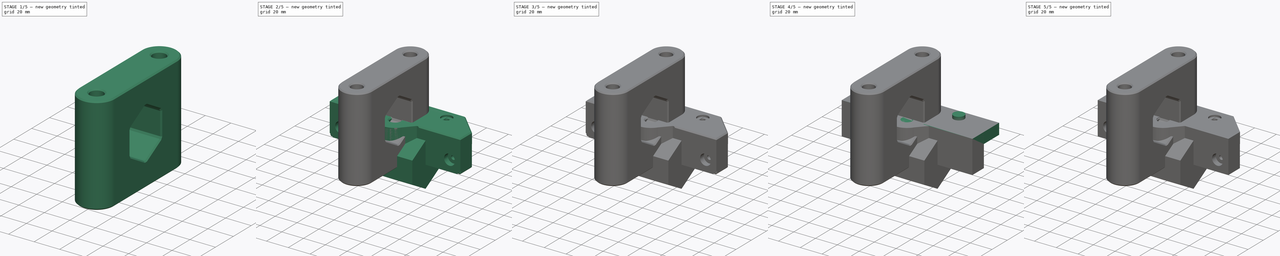
[diagram: build sequence overview — one tinted view per stage of 5, left to right]
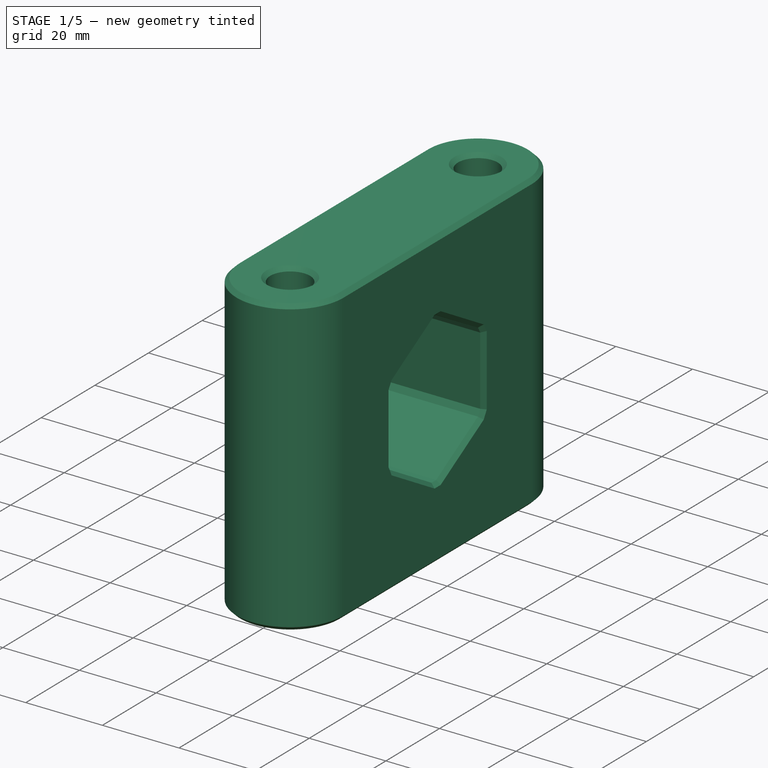
[diagram: stage 1 of 5 — iso view after this stage's code; geometry added in this stage tinted green]
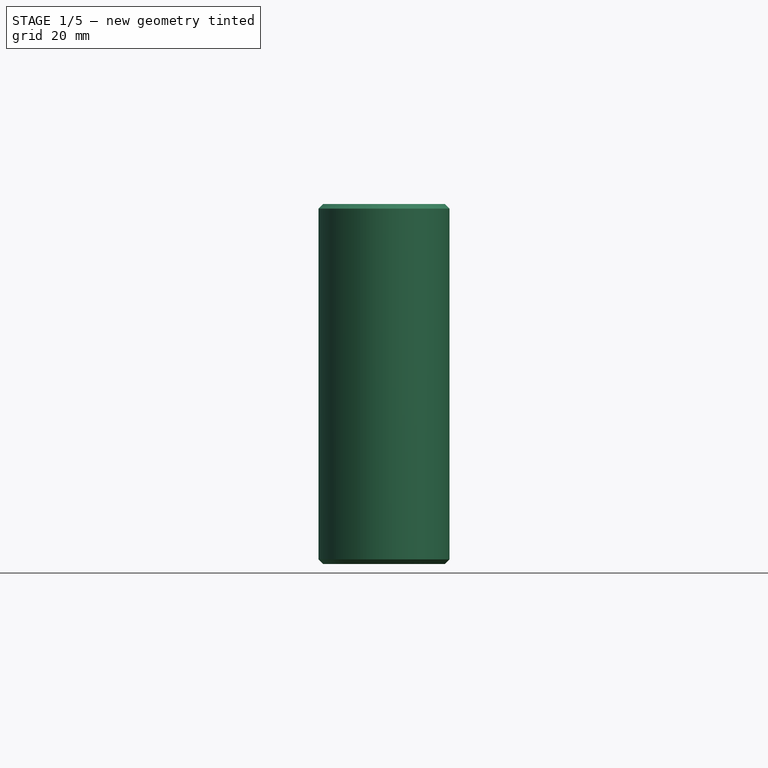
[diagram: stage 1 of 5 — front view after this stage's code; geometry added in this stage tinted green]
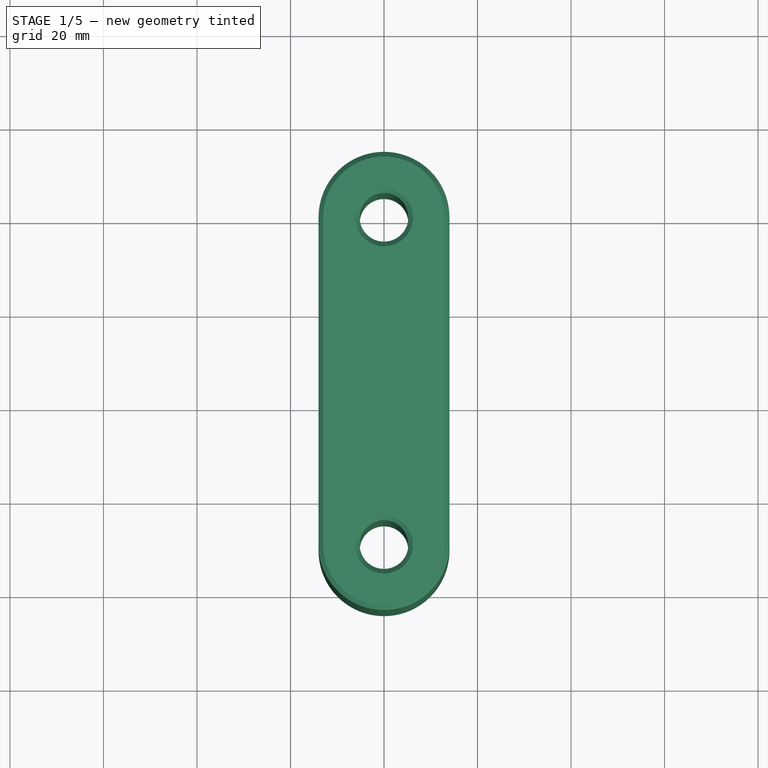
[diagram: stage 1 of 5 — top view after this stage's code; geometry added in this stage tinted green]
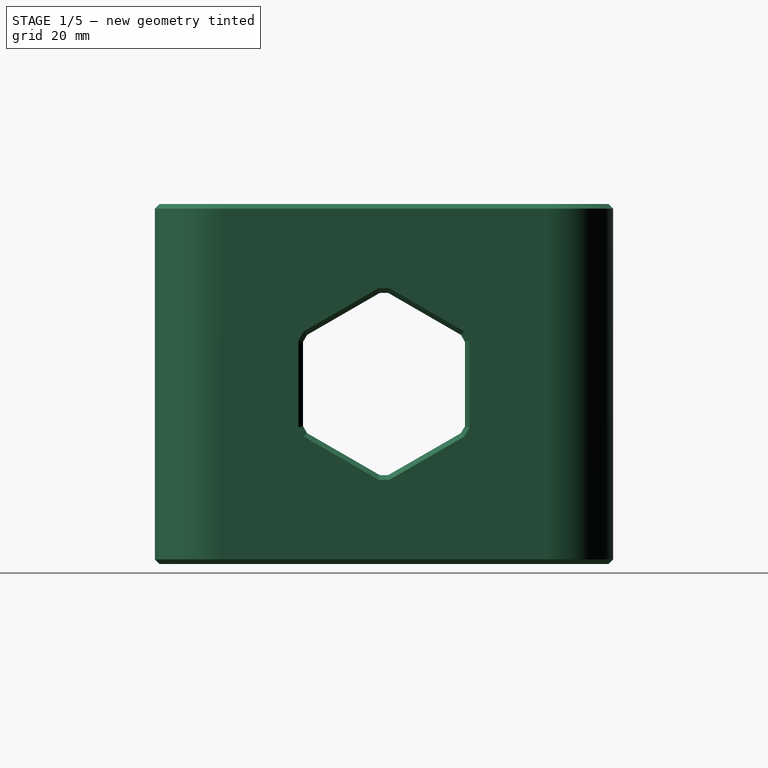
[diagram: stage 1 of 5 — right view after this stage's code; geometry added in this stage tinted green]
FCSTD DOCUMENT  (FreeCAD 0.18R16146 (Git))
Label: vesa-mounter
License: All rights reserved
LicenseURL: http://en.wikipedia.org/wiki/All_rights_reserved
objects: Part::Box×27, Part::Cylinder×18, Part::Cut×18, Part::MultiFuse×17, Part::Feature×16, Part::Chamfer×15, Sketcher::SketchObject×1, PartDesign::Pad×1, PartDesign::Body×1
note: 115 computed .brp shape members not serialized (recipe doc carries the construction recipe); baked Part::Feature solids carry a one-line shape summary decoded from their .brp

FEATURE [Part::Cylinder] Cylinder012
  Angle = 360
  AttacherType = Attacher::AttachEngine3D
  Height = 78
  Placement = pos=(0,20,0) rot=(0,0,1;0rad)
  Radius = 5.2
FEATURE [Part::Cylinder] Cylinder013
  Angle = 360
  AttacherType = Attacher::AttachEngine3D
  Height = 77
  Placement = pos=(0,20,0) rot=(0,0,1;0rad)
  Radius = 14
FEATURE [Part::Cylinder] Cylinder014
  Angle = 360
  AttacherType = Attacher::AttachEngine3D
  Height = 77
  Placement = pos=(0,-50,0) rot=(0,0,1;0rad)
  Radius = 14
FEATURE [Part::Cylinder] Cylinder015
  Angle = 360
  AttacherType = Attacher::AttachEngine3D
  Height = 78
  Placement = pos=(0,-50,0) rot=(0,0,1;0rad)
  Radius = 5.2
FEATURE [Part::Box] Box022  label="Cube022"
  AttacherType = Attacher::AttachEngine3D
  Height = 77
  Length = 28
  Placement = pos=(-14,-50,0) rot=(0,0,1;0rad)
  Width = 70
FEATURE [Part::Box] Box023  label="Cube023"
  AttacherType = Attacher::AttachEngine3D
  Height = 10
  Length = 0.5
  Placement = pos=(10,-50,5) rot=(0,0,1;0rad)
  Width = 70
FEATURE [Part::Box] Box024  label="Cube024"
  AttacherType = Attacher::AttachEngine3D
  Height = 10
  Length = 0.5
  Placement = pos=(-10.5,-50,5) rot=(0,0,1;0rad)
  Width = 70
FEATURE [Part::Box] Box025  label="Cube025"
  AttacherType = Attacher::AttachEngine3D
  Height = 10
  Length = 0.5
  Placement = pos=(-0.5,-40,5) rot=(0,0,1;0rad)
  Width = 50
FEATURE [Part::Box] Box026  label="Cube026"
  AttacherType = Attacher::AttachEngine3D
  Height = 10
  Length = 0.5
  Placement = pos=(-0.5,-40,61) rot=(0,0,1;0rad)
  Width = 50
FEATURE [Part::MultiFuse] Fusion002006007004002005003
  Shapes = -> [Cylinder014,Box022,Cylinder013]
FEATURE [Part::MultiFuse] Fusion002006007004002005004
  Shapes = -> [Cylinder012,Cylinder015]
FEATURE [Part::Cut] Cut004007005007
  Base = -> Fusion002006007004002005003
  Tool = -> Fusion002006007004002005004
FEATURE [Part::Chamfer] Chamfer004009
  Base = -> Cut004007005007
  Edges = 15 edges r=1: [Edge2,Edge4,Edge5,Edge7,Edge9,Edge11,Edge13,Edge15,Edge19,Edge20,Edge24,Edge28,Edge29,Edge30,Edge33]
FEATURE [Part::MultiFuse] Fusion002006007004002005005
  Shapes = -> [Box024,Box023]
FEATURE [Part::Feature] Fusion002006007004002005005001  label="Fusion002006007004002005006"
  Placement = pos=(0,0,57) rot=(0,0,1;0rad)
  shape: bbox 21 x 70 x 10 mm, 12 faces, 2 solids (baked)
FEATURE [Part::MultiFuse] Fusion002006007004002005005002
  Shapes = -> [Box026,Box025,Fusion002006007004002005005,Fusion002006007004002005005001]
FEATURE [Part::Cut] Cut004007005008
  Base = -> Chamfer004009
  Tool = -> Fusion002006007004002005005002
FEATURE [PartDesign::Body] Body
  Group = -> [Sketch,Pad]
  Origin = -> Origin
  Tip = -> Pad
FEATURE [Part::Feature] Body001
  Placement = pos=(-14,-15,38.5) rot=(0,0,1;0rad)
  shape: bbox 28 x 34.64 x 40 mm, 8 faces (baked)
FEATURE [Part::Cut] Cut004007005009
  Base = -> Cut004007005008
  Tool = -> Body001
FEATURE [Part::Chamfer] Chamfer004010
  Base = -> Cut004007005009
  Edges = 6 edges r=1: [Edge51,Edge52,Edge53,Edge54,Edge55,Edge56]
FEATURE [Part::Chamfer] Chamfer004011
  Base = -> Chamfer004010
  Edges = 24 edges r=1: [Edge1,Edge2,Edge3,Edge4,Edge5,Edge6,Edge7,Edge8,Edge9,Edge10,Edge11,Edge12,Edge21,Edge24,Edge26,Edge28,Edge30,Edge32,Edge34,Edge36,Edge38,Edge40,Edge42,Edge44]
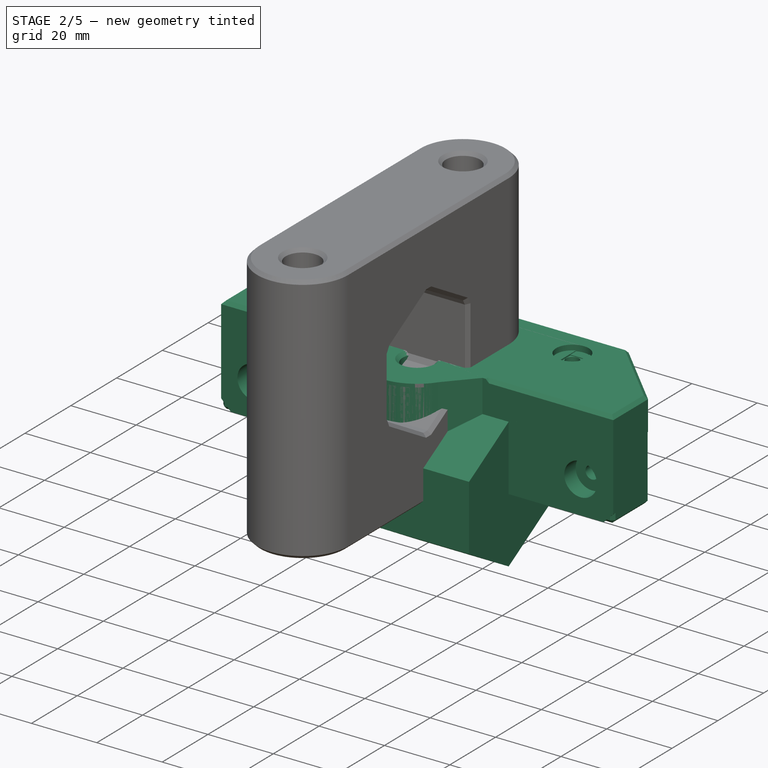
[diagram: stage 2 of 5 — iso view after this stage's code; geometry added in this stage tinted green]
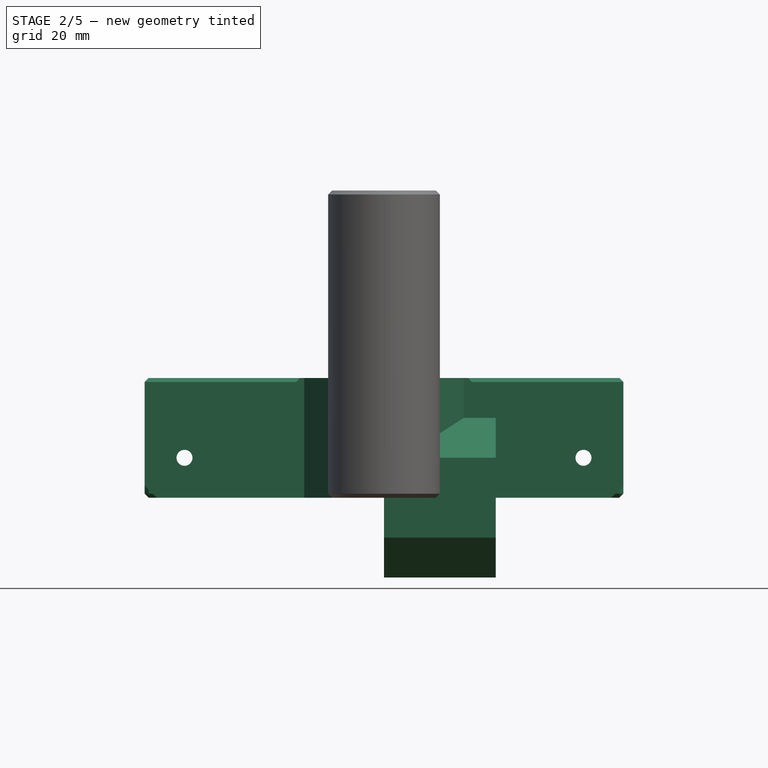
[diagram: stage 2 of 5 — front view after this stage's code; geometry added in this stage tinted green]
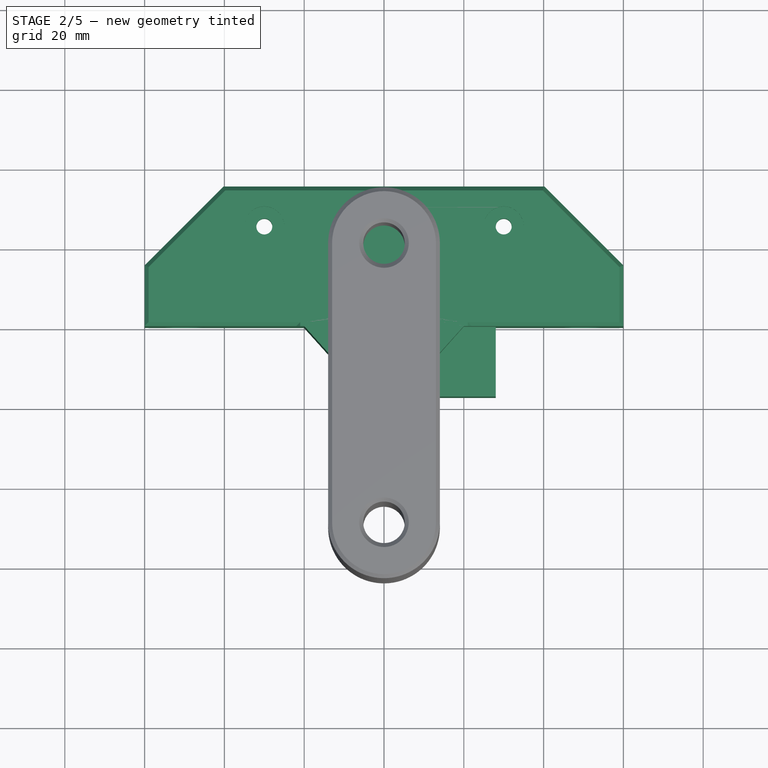
[diagram: stage 2 of 5 — top view after this stage's code; geometry added in this stage tinted green]
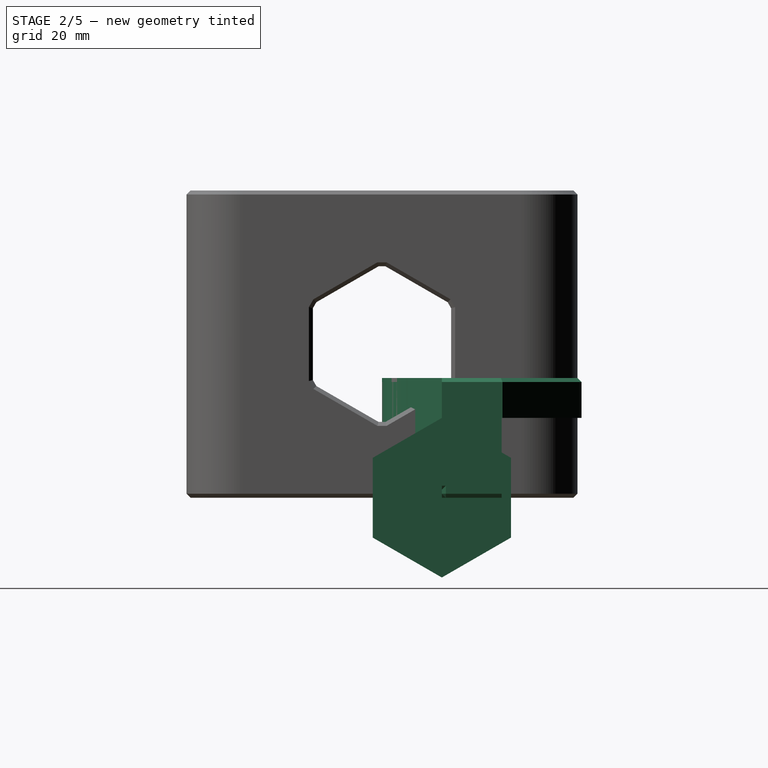
[diagram: stage 2 of 5 — right view after this stage's code; geometry added in this stage tinted green]
FEATURE [Part::Feature] Fusion002006001  label="top-bottom001"
  shape: bbox 120 x 50 x 30 mm, 49 faces (baked)
FEATURE [Part::Chamfer] Chamfer004  label="top"
  Base = -> Fusion002006001
  Edges = 14 edges r=1: [Edge59,Edge66,Edge72,Edge78,Edge87,Edge95,Edge101,Edge103,Edge108,Edge117,Edge132,Edge133,Edge135,Edge136]
FEATURE [Part::Feature] Fusion002006007001  label="monitor-mount001"
  shape: bbox 120 x 30 x 30 mm, 25 faces (baked)
FEATURE [Part::Chamfer] Chamfer004007  label="monitor-top-bottom"
  Base = -> Fusion002006007001
  Edges = 16 edges r=1: [Edge2,Edge5,Edge8,Edge16,Edge17,Edge22,Edge24,Edge26,Edge32,Edge33,Edge35,Edge67,Edge68,Edge69,Edge70,Edge71]
FEATURE [Part::Box] Box018  label="Cube018"
  AttacherType = Attacher::AttachEngine3D
  Height = 10
  Length = 30
  Placement = pos=(10,4,5) rot=(0,0,1;0rad)
  Width = 0.5
FEATURE [Part::Cylinder] Cylinder010
  Angle = 360
  AttacherType = Attacher::AttachEngine3D
  Height = 30
  Radius = 4.5
FEATURE [Part::Cylinder] Cylinder011
  Angle = 360
  AttacherType = Attacher::AttachEngine3D
  Height = 30
  Radius = 6
FEATURE [Part::Cut] Cut004007002
  Base = -> Cylinder011
  Tool = -> Cylinder010
FEATURE [Part::Chamfer] Chamfer004008
  Base = -> Cut004007002
  Edges = 2 edges r=1: [Edge4,Edge5]
FEATURE [Part::Box] Box019  label="Cube019"
  AttacherType = Attacher::AttachEngine3D
  Height = 20
  Length = 90
  Placement = pos=(-45,10,5) rot=(0,0,1;0rad)
  Width = 0.5
FEATURE [Part::Box] Box020  label="Cube020"
  AttacherType = Attacher::AttachEngine3D
  Height = 20
  Length = 30
  Placement = pos=(-40,6,5) rot=(0,0,1;0rad)
  Width = 0.5
FEATURE [Part::Box] Box021  label="Cube021"
  AttacherType = Attacher::AttachEngine3D
  Height = 20
  Length = 30
  Placement = pos=(10,6,5) rot=(0,0,1;0rad)
  Width = 0.5
FEATURE [Part::MultiFuse] Fusion002006007004
  Shapes = -> [Box019,Box021,Box020]
FEATURE [Part::Cut] Cut004007004  label="frame-top-rf"
  Base = -> Chamfer004
  Tool = -> Fusion002006007004
FEATURE [Part::Feature] Fusion002006007004002001  label="Fusion002006007004003"
  shape: bbox 90 x 6.5 x 10 mm, 18 faces, 3 solids (baked)
FEATURE [Part::Cut] Cut004007005  label="monitor-top-rf"
  Base = -> Chamfer004007
  Tool = -> Fusion002006007004002001
FEATURE [Part::Feature] Cut004007005001  label="monitor-top-rf001"
  shape: bbox 120 x 30 x 30 mm, 61 faces (baked)
FEATURE [Part::MultiFuse] Fusion002006007004002002  label="monitor-bottom-rf"
  Shapes = -> [Chamfer004008,Cut004007005001]
FEATURE [Part::Cylinder] Cylinder016
  Angle = 360
  AttacherType = Attacher::AttachEngine3D
  Height = 30
  Radius = 5.2
FEATURE [Part::Cut] Cut004007005005  label="monitor-top-rf-lg"
  Base = -> Cut004007005
  Tool = -> Cylinder016
FEATURE [Part::Cylinder] Cylinder018
  Angle = 360
  AttacherType = Attacher::AttachEngine3D
  Height = 30
  Radius = 5.2
FEATURE [Part::Cut] Cut004007005006  label="frame-top-rf-lg"
  Base = -> Cut004007004
  Tool = -> Cylinder018
FEATURE [Sketcher::SketchObject] Sketch
  MapMode = 5
  Placement = pos=(0,0,0) rot=(0.57735,0.57735,0.57735;2.0944rad)
  Support = -> [YZ_Plane]
  sketch-geometry (7):
    g0: LineSegment StartX=0 StartY=20 StartZ=0 EndX=-17.3205 EndY=10 EndZ=0
    g1: LineSegment StartX=-17.3205 StartY=10 StartZ=0 EndX=-17.3205 EndY=-10 EndZ=0
    g2: LineSegment StartX=-17.3205 StartY=-10 StartZ=0 EndX=-3.6e-15 EndY=-20 EndZ=0
    g3: LineSegment StartX=-3.6e-15 StartY=-20 StartZ=0 EndX=17.3205 EndY=-10 EndZ=0
    g4: LineSegment StartX=17.3205 StartY=-10 StartZ=0 EndX=17.3205 EndY=10 EndZ=0
    g5: LineSegment StartX=17.3205 StartY=10 StartZ=0 EndX=0 EndY=20 EndZ=0
    g6: Circle [constr] CenterX=0 CenterY=0 CenterZ=0 NormalX=0 NormalY=0 NormalZ=1 AngleXU=0 Radius=20
  constraints (13):
    c: Coincident(g0,g1)
    c: Coincident(g1,g2)
    c: Coincident(g2,g3)
    c: Coincident(g3,g4)
    c: Coincident(g4,g5)
    c: Coincident(g5,g0)
    c: Equal(g0, g1-g5) x5
    c: PointOnObject(g0,g6)
    c: PointOnObject(g1,g6)
    c: PointOnObject(g2,g6)
    c: PointOnObject(g3,g6)
    c: PointOnObject(g4,g6)
    c: PointOnObject(g5,g6)
FEATURE [PartDesign::Pad] Pad
  Length = 28
  Length2 = 100
  Placement = pos=(0,0,0) rot=(0.57735,0.57735,0.57735;2.0944rad)
  Profile = -> Sketch
  Type = 0
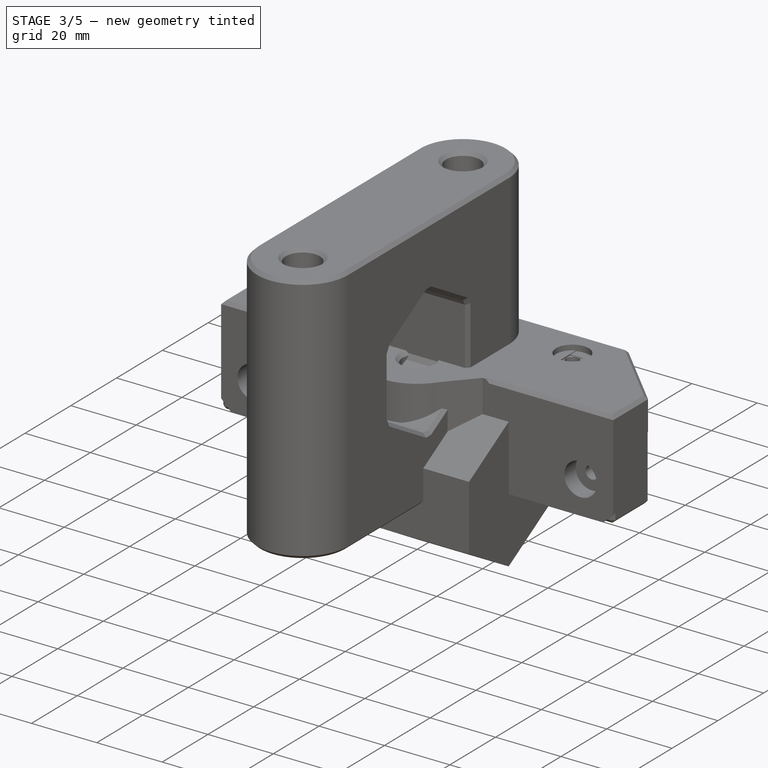
[diagram: stage 3 of 5 — iso view after this stage's code; geometry added in this stage tinted green]
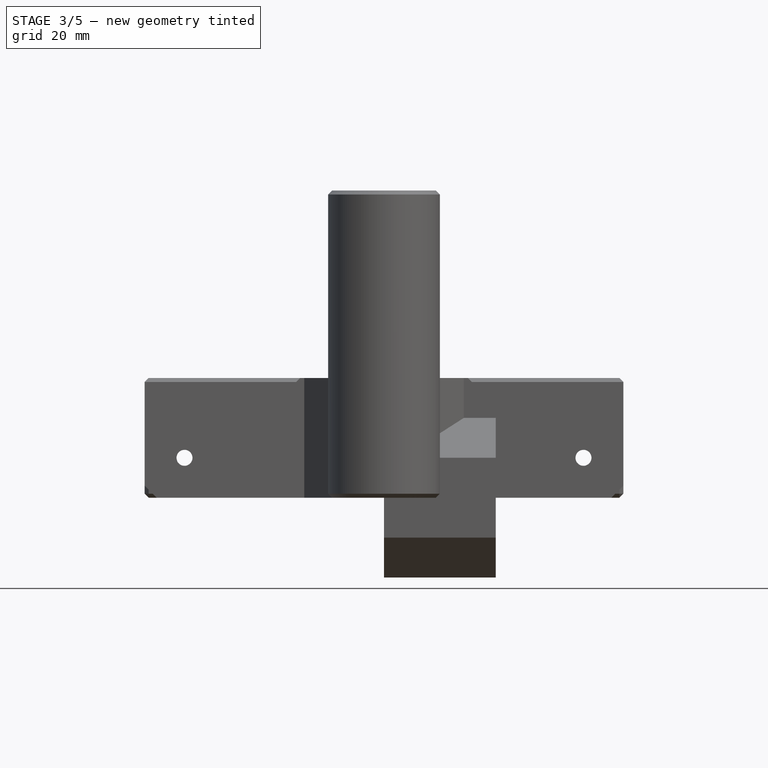
[diagram: stage 3 of 5 — front view after this stage's code; geometry added in this stage tinted green]
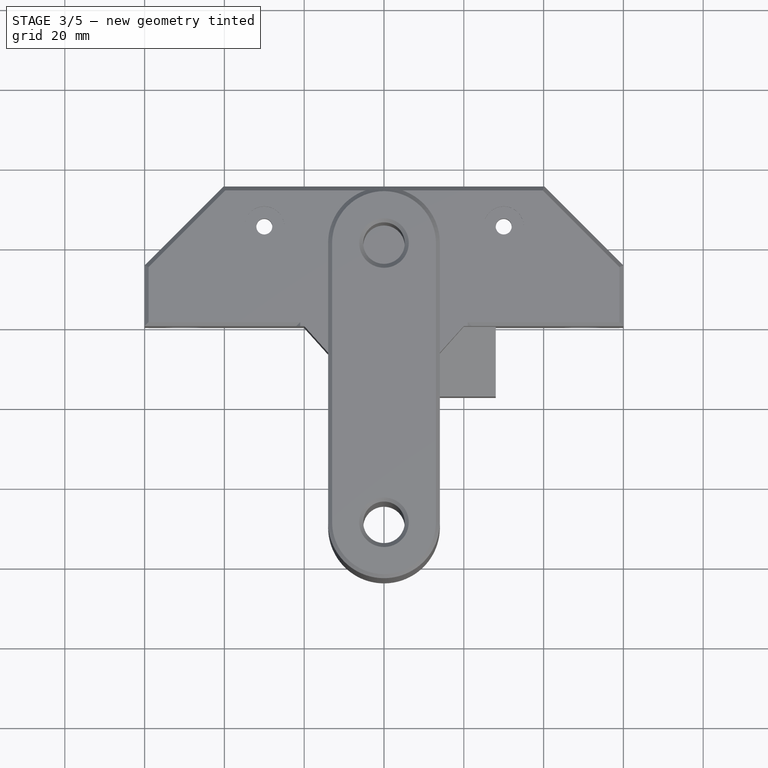
[diagram: stage 3 of 5 — top view after this stage's code; geometry added in this stage tinted green]
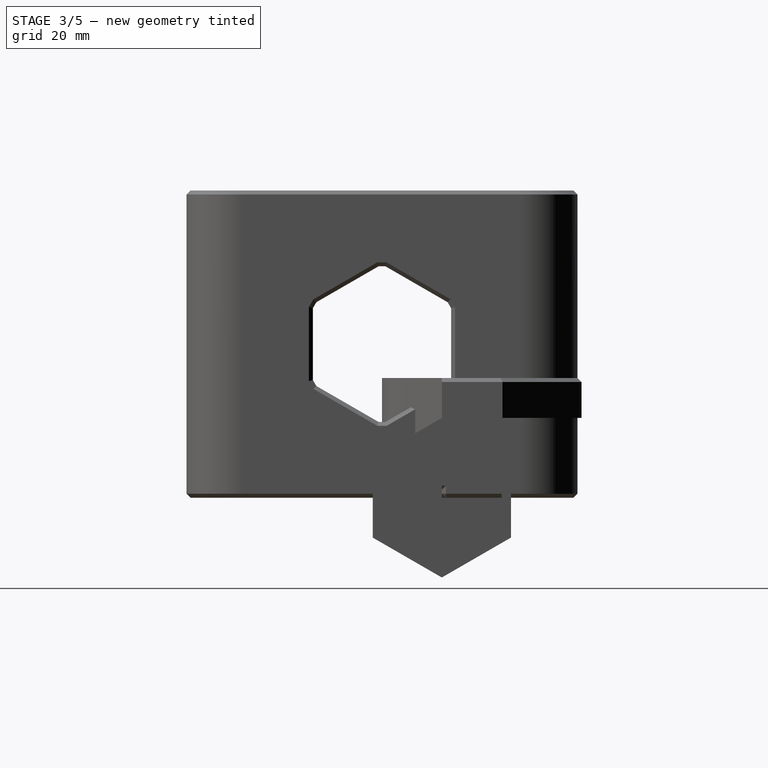
[diagram: stage 3 of 5 — right view after this stage's code; geometry added in this stage tinted green]
FEATURE [Part::Feature] Chamfer004001  label="top001"
  shape: bbox 120 x 50 x 30 mm, 63 faces (baked)
FEATURE [Part::Cylinder] Cylinder006
  Angle = 360
  AttacherType = Attacher::AttachEngine3D
  Height = 30
  Radius = 7
FEATURE [Part::Cylinder] Cylinder007
  Angle = 360
  AttacherType = Attacher::AttachEngine3D
  Height = 30
  Radius = 4.5
FEATURE [Part::Cut] Cut004004
  Base = -> Cylinder006
  Tool = -> Cylinder007
FEATURE [Part::Chamfer] Chamfer004002
  Base = -> Cut004004
  Edges = 2 edges r=1: [Edge4,Edge5]
FEATURE [Part::MultiFuse] Fusion002006002  label="bottom"
  Shapes = -> [Chamfer004002,Chamfer004001]
FEATURE [Part::Box] Box009  label="Cube009"
  AttacherType = Attacher::AttachEngine3D
  Height = 30
  Length = 10
  Placement = pos=(11,-10,0) rot=(0,0,1;0rad)
  Width = 11
FEATURE [Part::Box] Box010  label="Cube010"
  AttacherType = Attacher::AttachEngine3D
  Height = 30
  Length = 10
  Placement = pos=(-20,-10,0) rot=(0,0,1;0rad)
  Width = 11
FEATURE [Part::Box] Box011  label="Cube011"
  AttacherType = Attacher::AttachEngine3D
  Height = 30
  Length = 10
  Placement = pos=(10,1,0) rot=(0,0,1;0rad)
  Width = 14
FEATURE [Part::Box] Box012  label="Cube012"
  AttacherType = Attacher::AttachEngine3D
  Height = 30
  Length = 10
  Placement = pos=(-20,1,0) rot=(0,0,1;0rad)
  Width = 14
FEATURE [Part::Chamfer] Chamfer004003
  Base = -> Box010
  Edges = 1 edges: [Edge1 r1=10 r2=9]
FEATURE [Part::Chamfer] Chamfer004004
  Base = -> Box009
  Edges = 1 edges: [Edge5 r1=10 r2=9]
  Placement = pos=(-1,0,0) rot=(0,0,1;0rad)
FEATURE [Part::Box] Box013  label="Cube013"
  AttacherType = Attacher::AttachEngine3D
  Height = 30
  Length = 20
  Placement = pos=(-10,5,0) rot=(0,0,1;0rad)
  Width = 10
FEATURE [Part::Box] Box014  label="Cube014"
  AttacherType = Attacher::AttachEngine3D
  Height = 30
  Length = 11
  Placement = pos=(-31,0,0) rot=(0,0,1;0rad)
  Width = 15
FEATURE [Part::Box] Box015  label="Cube015"
  AttacherType = Attacher::AttachEngine3D
  Height = 30
  Length = 11
  Placement = pos=(20,0,0) rot=(0,0,1;0rad)
  Width = 15
FEATURE [Part::Chamfer] Chamfer004005
  Base = -> Box014
  Edges = 1 edges r=10: [Edge2]
FEATURE [Part::Chamfer] Chamfer004006
  Base = -> Box015
  Edges = 1 edges r=10: [Edge6]
FEATURE [Part::Box] Box016  label="Cube016"
  AttacherType = Attacher::AttachEngine3D
  Height = 10
  Length = 90
  Placement = pos=(-45,10,5) rot=(0,0,1;0rad)
  Width = 0.5
FEATURE [Part::Box] Box017  label="Cube017"
  AttacherType = Attacher::AttachEngine3D
  Height = 10
  Length = 30
  Placement = pos=(-40,4,5) rot=(0,0,1;0rad)
  Width = 0.5
FEATURE [Part::Feature] Fusion002006007004001  label="Fusion002006007005"
  shape: bbox 90 x 4.5 x 20 mm, 18 faces, 3 solids (baked)
FEATURE [Part::Cut] Cut004007003  label="frame-bottom-rf"
  Base = -> Fusion002006002
  Tool = -> Fusion002006007004001
FEATURE [Part::MultiFuse] Fusion002006007004002
  Shapes = -> [Box016,Box018,Box017]
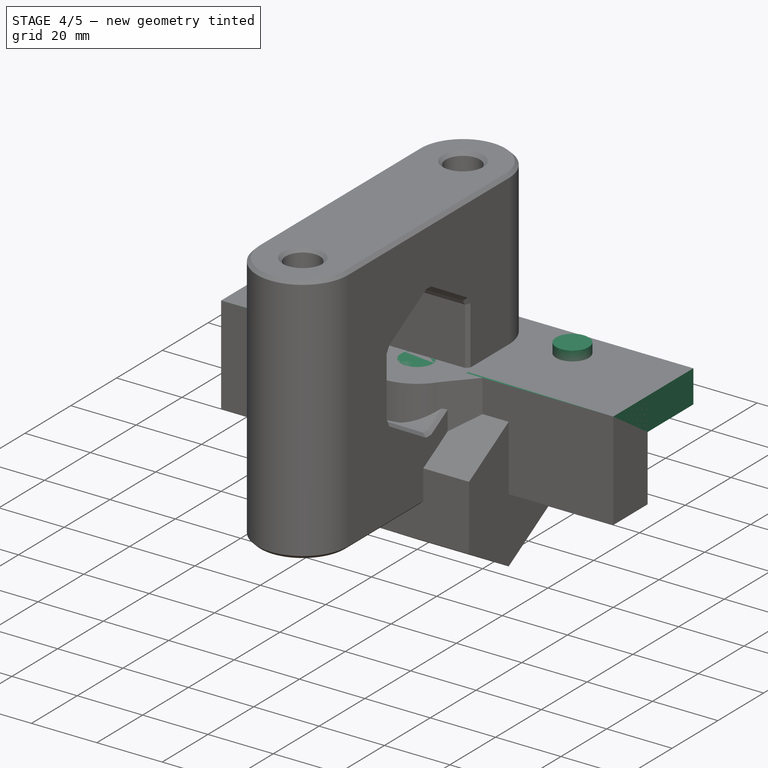
[diagram: stage 4 of 5 — iso view after this stage's code; geometry added in this stage tinted green]
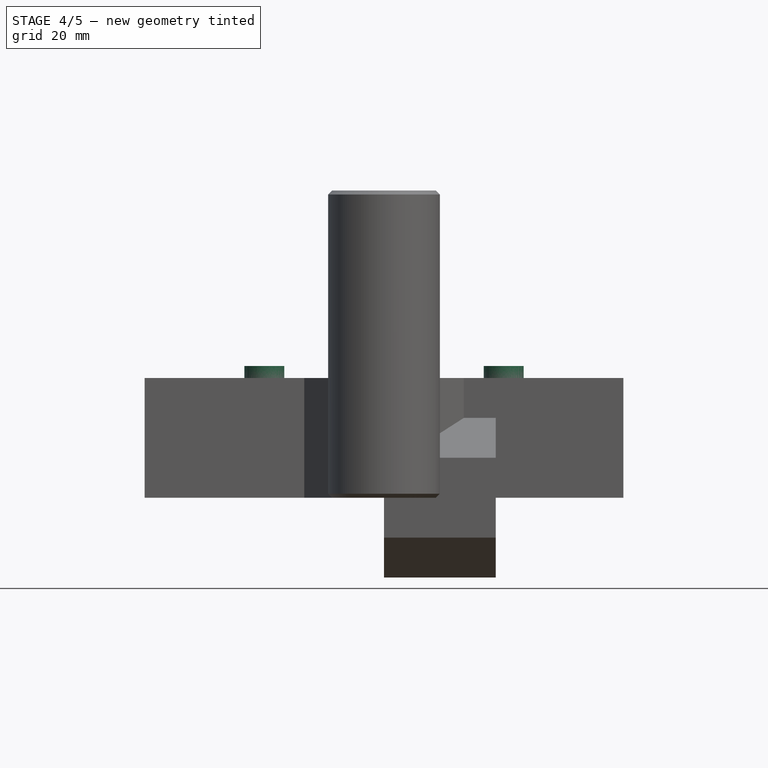
[diagram: stage 4 of 5 — front view after this stage's code; geometry added in this stage tinted green]
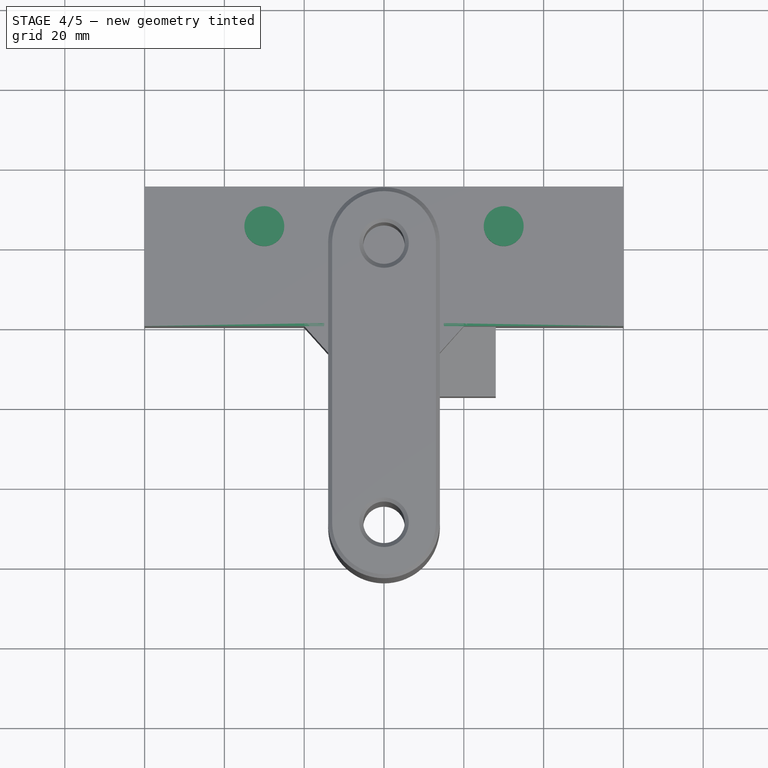
[diagram: stage 4 of 5 — top view after this stage's code; geometry added in this stage tinted green]
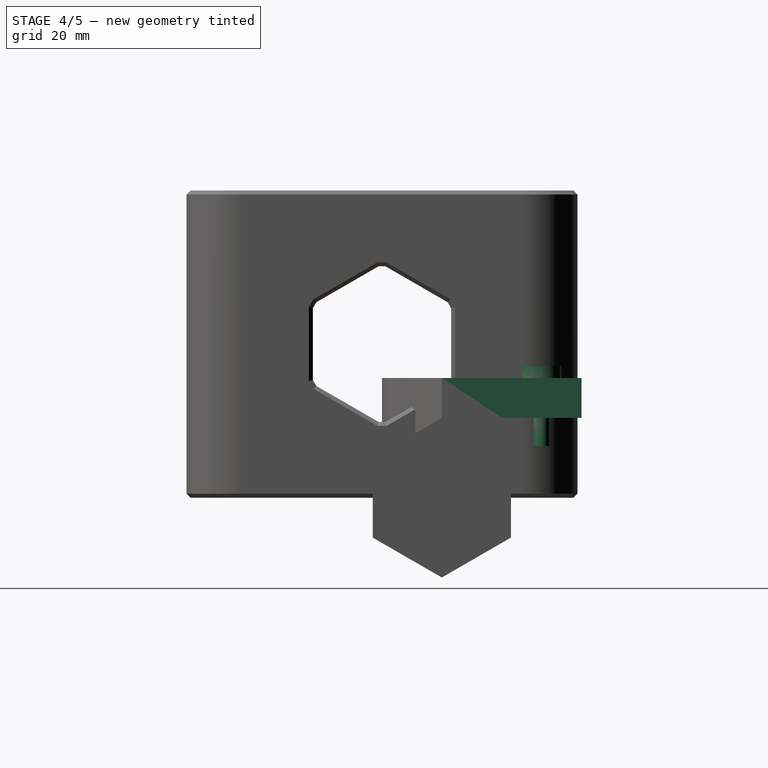
[diagram: stage 4 of 5 — right view after this stage's code; geometry added in this stage tinted green]
FEATURE [Part::Cylinder] Cylinder
  Angle = 360
  AttacherType = Attacher::AttachEngine3D
  Height = 30
  Radius = 15
FEATURE [Part::Cylinder] Cylinder001
  Angle = 360
  AttacherType = Attacher::AttachEngine3D
  Height = 30
  Radius = 5
FEATURE [Part::Box] Box  label="Cube"
  AttacherType = Attacher::AttachEngine3D
  Height = 30
  Length = 120
  Placement = pos=(-60,0,0) rot=(0,0,1;0rad)
  Width = 35
FEATURE [Part::Box] Box001  label="Cube001"
  AttacherType = Attacher::AttachEngine3D
  Height = 30
  Length = 120
  Placement = pos=(-60,15,-10) rot=(0,0,1;0rad)
  Width = 35
FEATURE [Part::Cut] Cut
  Base = -> Box
  Tool = -> Box001
FEATURE [Part::MultiFuse] Fusion003
  Shapes = -> [Cut,Cylinder]
FEATURE [Part::Feature] Cut004001  label="m4-overhang001"
  Placement = pos=(-30,25,30) rot=(0,1,0;3.14159rad)
  shape: bbox 10 x 10 x 20 mm, 13 faces (baked)
FEATURE [Part::Feature] Cut004002  label="m4-overhang002"
  Placement = pos=(30,25,30) rot=(0,1,0;3.14159rad)
  shape: bbox 10 x 10 x 20 mm, 13 faces (baked)
FEATURE [Part::MultiFuse] Fusion002005
  Placement = pos=(0,0,3) rot=(0,0,1;0rad)
  Shapes = -> [Cut004002,Cut004001]
FEATURE [Part::Box] Box006  label="Cube006"
  AttacherType = Attacher::AttachEngine3D
  Height = 30
  Length = 10
  Placement = pos=(10,-10,0) rot=(0,0,1;0rad)
  Width = 11
FEATURE [Part::Box] Box007  label="Cube007"
  AttacherType = Attacher::AttachEngine3D
  Height = 30
  Length = 10
  Placement = pos=(-20,-10,0) rot=(0,0,1;0rad)
  Width = 11
FEATURE [Part::Chamfer] Chamfer002
  Base = -> Box007
  Edges = 1 edges: [Edge1 r1=10 r2=9]
FEATURE [Part::Chamfer] Chamfer003
  Base = -> Box006
  Edges = 1 edges: [Edge5 r1=10 r2=9]
FEATURE [Part::Cylinder] Cylinder008
  Angle = 360
  AttacherType = Attacher::AttachEngine3D
  Height = 30
  Radius = 15
FEATURE [Part::Cylinder] Cylinder009
  Angle = 360
  AttacherType = Attacher::AttachEngine3D
  Height = 30
  Radius = 5
FEATURE [Part::Box] Box008  label="Cube008"
  AttacherType = Attacher::AttachEngine3D
  Height = 20
  Length = 120
  Placement = pos=(-60,0,0) rot=(0,0,1;0rad)
  Width = 15
FEATURE [Part::Feature] Fusion002006003  label="m4-vertical003"
  Placement = pos=(-50,4e-15,10) rot=(-1,0,0;1.5708rad)
  shape: bbox 10 x 20 x 10.2 mm, 7 faces (baked)
FEATURE [Part::Feature] Fusion002006004  label="m4-vertical004"
  Placement = pos=(50,4e-15,10) rot=(-1,0,0;1.5708rad)
  shape: bbox 10 x 20 x 10.2 mm, 7 faces (baked)
FEATURE [Part::MultiFuse] Fusion002006005
  Shapes = -> [Fusion002006004,Fusion002006003]
FEATURE [Part::Cut] Cut004005
  Base = -> Box008
  Tool = -> Fusion002006005
FEATURE [Part::MultiFuse] Fusion002006006
  Shapes = -> [Cut004005,Cylinder008]
FEATURE [Part::Cut] Cut004006
  Base = -> Fusion002006006
  Tool = -> Cylinder009
FEATURE [Part::MultiFuse] Fusion002006007  label="monitor-mount"
  Shapes = -> [Cut004006,Box013,Chamfer004005,Chamfer004003,Box012,Box011,Chamfer004004,Chamfer004006]
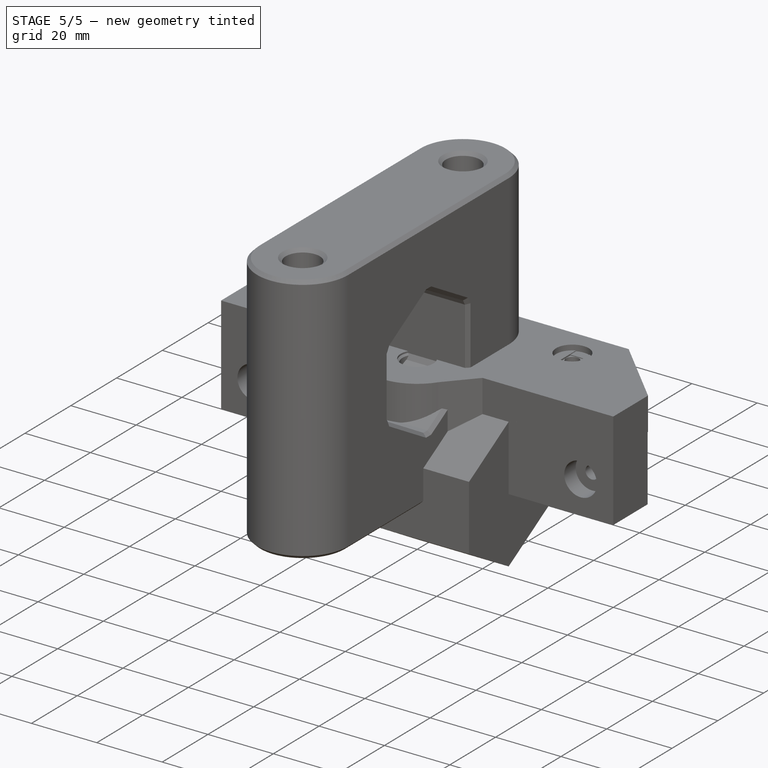
[diagram: stage 5 of 5 — iso view after this stage's code; geometry added in this stage tinted green]
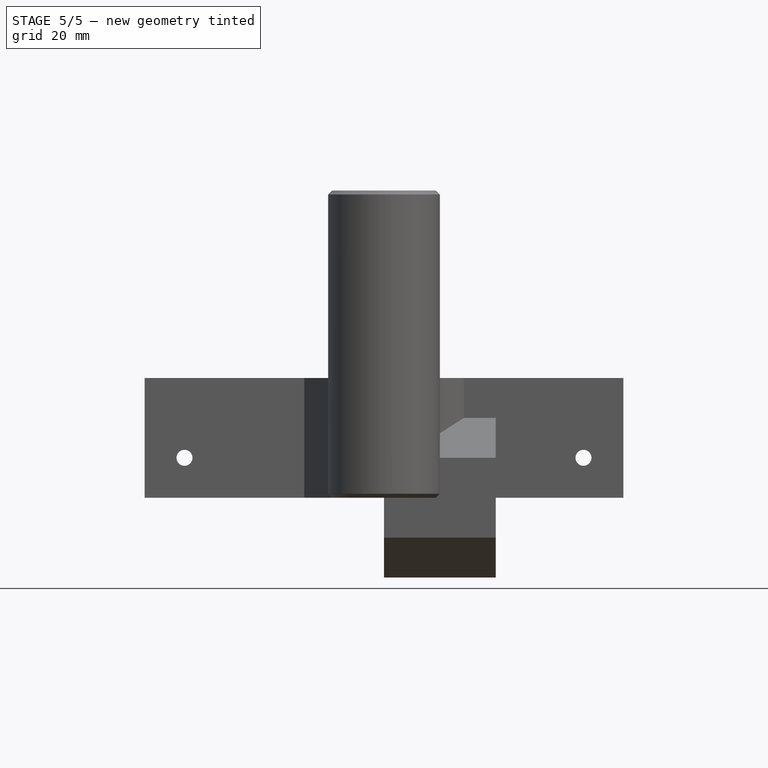
[diagram: stage 5 of 5 — front view after this stage's code; geometry added in this stage tinted green]
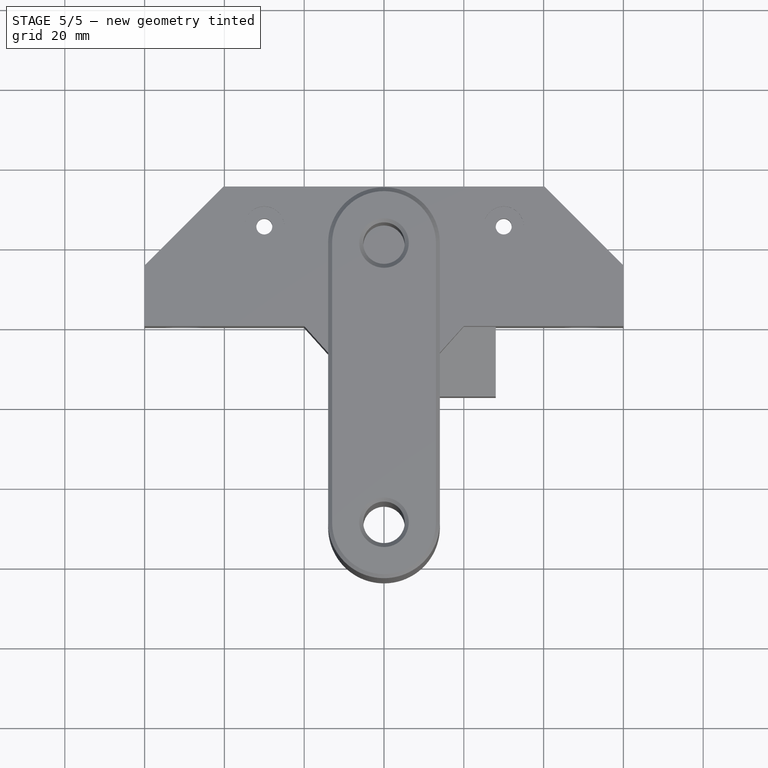
[diagram: stage 5 of 5 — top view after this stage's code; geometry added in this stage tinted green]
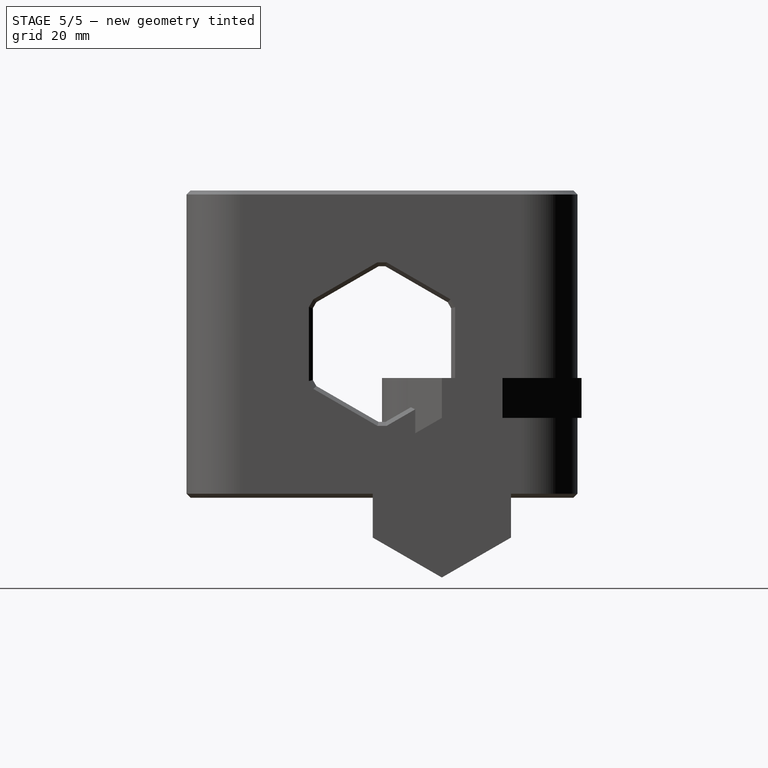
[diagram: stage 5 of 5 — right view after this stage's code; geometry added in this stage tinted green]
FEATURE [Part::Cylinder] Cylinder002
  Angle = 360
  AttacherType = Attacher::AttachEngine3D
  Height = 5
  Placement = pos=(0,-4.7,0) rot=(0,0,1;0rad)
  Radius = 0.5
FEATURE [Part::Cylinder] Cylinder003
  Angle = 360
  AttacherType = Attacher::AttachEngine3D
  Height = 20
  Placement = pos=(0,-1.7,0) rot=(0,0,1;0rad)
  Radius = 0.5
FEATURE [Part::Cylinder] Cylinder004
  Angle = 360
  AttacherType = Attacher::AttachEngine3D
  Height = 5
  Radius = 5
FEATURE [Part::Cylinder] Cylinder005
  Angle = 360
  AttacherType = Attacher::AttachEngine3D
  Height = 20
  Radius = 2
FEATURE [Part::MultiFuse] Fusion  label="m4"
  Shapes = -> [Cylinder004,Cylinder005]
FEATURE [Part::Feature] Fusion001
  shape: bbox 10 x 10 x 20 mm, 6 faces (baked)
FEATURE [Part::MultiFuse] Fusion002  label="m4-vertical"
  Shapes = -> [Fusion001,Cylinder003,Cylinder002]
FEATURE [Part::Cut] Cut001
  Base = -> Fusion003
  Tool = -> Cylinder001
FEATURE [Part::Feature] Fusion002001  label="m4-vertical001"
  Placement = pos=(-50,2e-15,10) rot=(0,0.707107,0.707107;3.14159rad)
  shape: bbox 10 x 20 x 10.2 mm, 7 faces (baked)
FEATURE [Part::Feature] Fusion002002  label="m4-vertical002"
  Placement = pos=(50,2e-15,10) rot=(0,0.707107,0.707107;3.14159rad)
  shape: bbox 10 x 20 x 10.2 mm, 7 faces (baked)
FEATURE [Part::Cut] Cut002
  Base = -> Cut001
  Tool = -> Fusion002002
FEATURE [Part::Cut] Cut003
  Base = -> Cut002
  Tool = -> Fusion002001
FEATURE [Part::Box] Box002  label="Cube002"
  AttacherType = Attacher::AttachEngine3D
  Height = 0.4
  Length = 10
  Placement = pos=(2.1,-5,4.6) rot=(0,0,1;0rad)
  Width = 10
FEATURE [Part::Box] Box003  label="Cube003"
  AttacherType = Attacher::AttachEngine3D
  Height = 0.4
  Length = 10
  Placement = pos=(-12.1,-5,4.6) rot=(0,0,1;0rad)
  Width = 10
FEATURE [Part::Box] Box004  label="Cube004"
  AttacherType = Attacher::AttachEngine3D
  Height = 0.2
  Length = 10
  Placement = pos=(-5,2.1,4.8) rot=(0,0,1;0rad)
  Width = 10
FEATURE [Part::Box] Box005  label="Cube005"
  AttacherType = Attacher::AttachEngine3D
  Height = 0.2
  Length = 10
  Placement = pos=(-5,-12.1,4.8) rot=(0,0,1;0rad)
  Width = 10
FEATURE [Part::MultiFuse] Fusion002003
  Shapes = -> [Box002,Box003,Box005,Box004]
FEATURE [Part::Feature] Fusion002004  label="m005"
  shape: bbox 10 x 10 x 20 mm, 6 faces (baked)
FEATURE [Part::Cut] Cut004  label="m4-overhang"
  Base = -> Fusion002004
  Tool = -> Fusion002003
FEATURE [Part::Cut] Cut004003
  Base = -> Cut003
  Tool = -> Fusion002005
FEATURE [Part::Chamfer] Chamfer
  Base = -> Cut004003
  Edges = 2 edges r=19.8: [Edge27,Edge46]
FEATURE [Part::Chamfer] Chamfer001  label="top-btm-basic"
  Base = -> Chamfer
  Edges = 2 edges r=3: [Edge5,Edge38]
FEATURE [Part::MultiFuse] Fusion002006  label="top-bottom"
  Shapes = -> [Chamfer001,Chamfer003,Chamfer002]
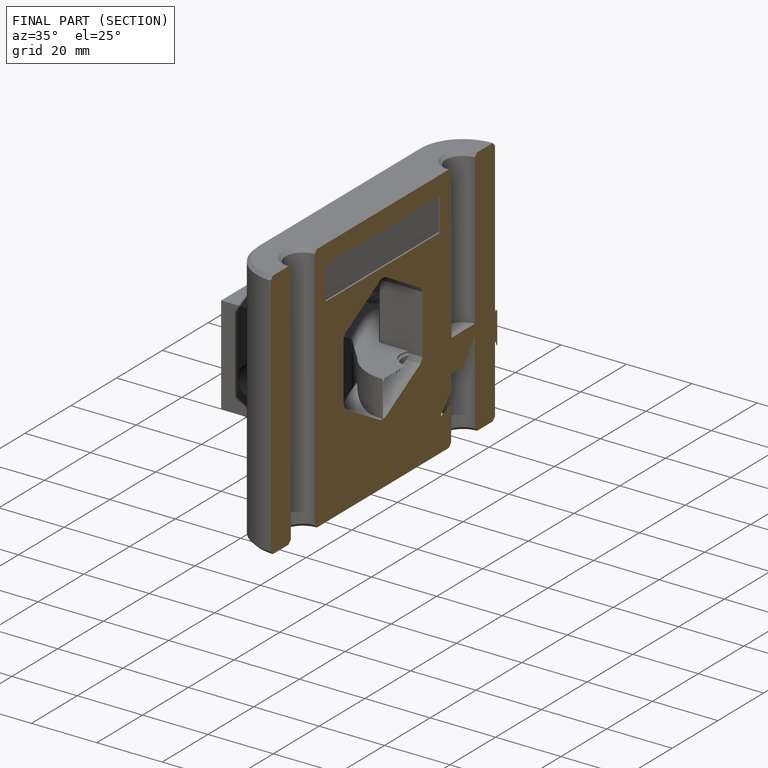
[diagram: finished part — half-section view (interior)]
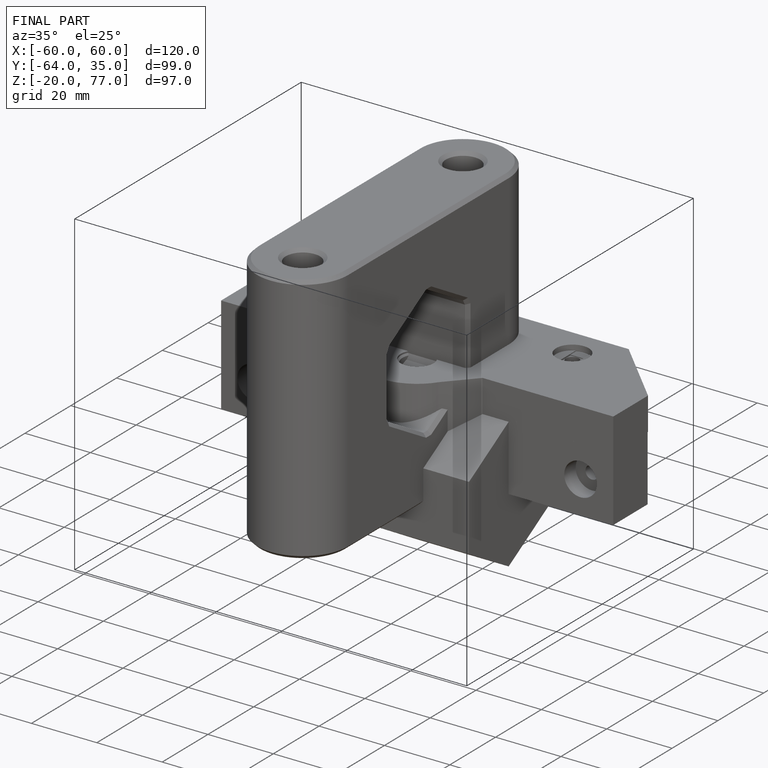
[diagram: finished part — iso view with bounding-box wireframe]
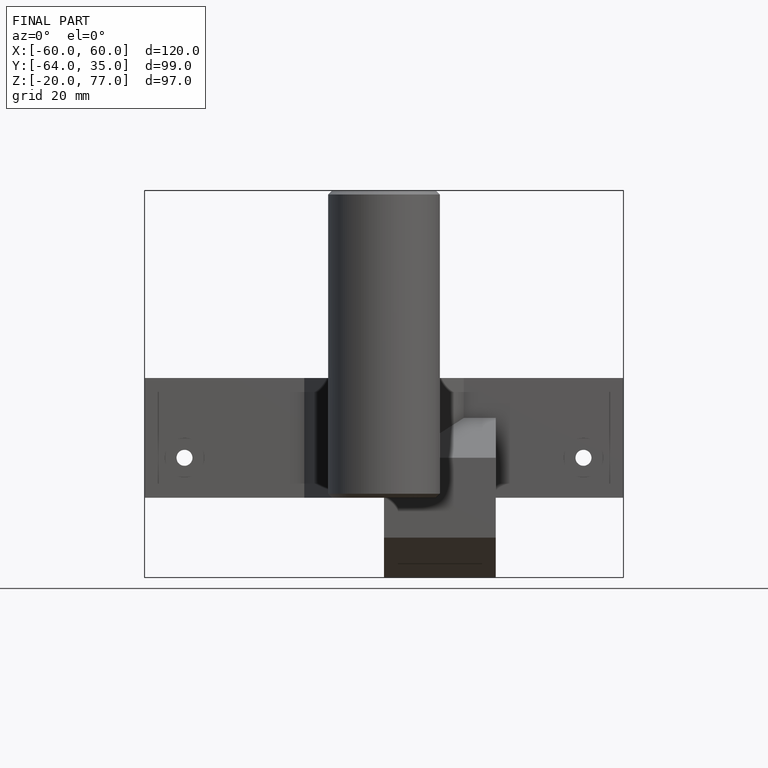
[diagram: finished part — front view with bounding-box wireframe]
